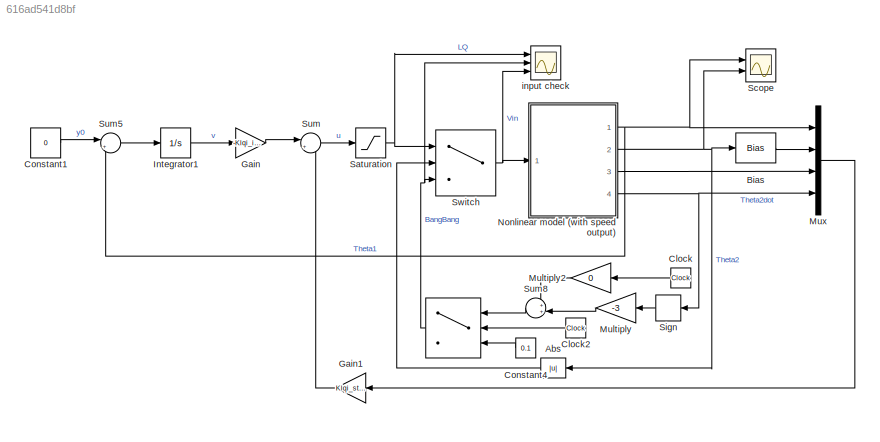
MODEL slx_616ad541d8bf
KIND model
CONFIG AbsTol = auto
CONFIG EnableMultiTasking = off
CONFIG FixedStep = 0.002
CONFIG MaxStep = auto
CONFIG MinStep = auto
CONFIG RelTol = 1e-3
CONFIG SampleTimeConstraint = Unconstrained
CONFIG Solver = FixedStepAuto
CONFIG SolverName = FixedStepAuto
CONFIG StartTime = 0.0
CONFIG StopTime = 25
BLOCK [Switch]  
  Criteria = u2 > Threshold
  InputSameDT = off
  SaturateOnIntegerOverflow = off
  Threshold = 0.2
BLOCK [Abs] Abs
  SaturateOnIntegerOverflow = off
BLOCK [Bias] Bias
  Bias = -pi
  SaturateOnIntegerOverflow = off
BLOCK [Clock] Clock
BLOCK [Clock] Clock2
BLOCK [Constant] Constant1
  Value = 0
BLOCK [Constant] Constant4
  Value = 0.1
BLOCK [Gain] Gain
  Gain = -Klqi_int
  OutDataTypeStr = Inherit: Inherit via internal rule
  ParamDataTypeStr = Inherit: Inherit via internal rule
  SaturateOnIntegerOverflow = off
BLOCK [Gain] Gain1
  Gain = Klqi_state
  Multiplication = Matrix(K*u)
  OutDataTypeStr = Inherit: Inherit via internal rule
  ParamDataTypeStr = Inherit: Inherit via internal rule
  SaturateOnIntegerOverflow = off
BLOCK [Integrator] Integrator1
  Ports = [1, 1]
BLOCK [Gain] Multiply
  Gain = -3
  OutDataTypeStr = Inherit: Inherit via internal rule
  ParamDataTypeStr = Inherit: Inherit via internal rule
  SaturateOnIntegerOverflow = off
BLOCK [Gain] Multiply2
  Gain = 0
  OutDataTypeStr = Inherit: Inherit via internal rule
  ParamDataTypeStr = Inherit: Inherit via internal rule
  SaturateOnIntegerOverflow = off
BLOCK [Mux] Mux
  DisplayOption = bar
  Ports = [4, 1]
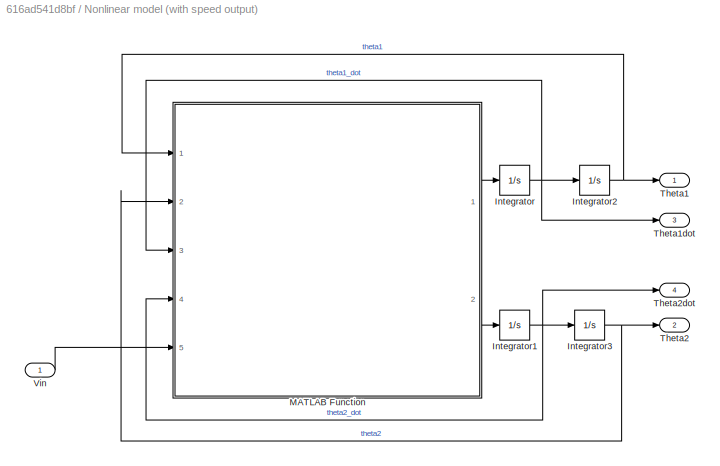
BLOCK [SubSystem] Nonlinear model (with speed output)
  Ports = [1, 4]
  RequestExecContextInheritance = off
BLOCK [Integrator] Nonlinear model (with speed output)/Integrator
  Ports = [1, 1]
BLOCK [Integrator] Nonlinear model (with speed output)/Integrator1
  Ports = [1, 1]
BLOCK [Integrator] Nonlinear model (with speed output)/Integrator2
  Ports = [1, 1]
BLOCK [Integrator] Nonlinear model (with speed output)/Integrator3
  Ports = [1, 1]
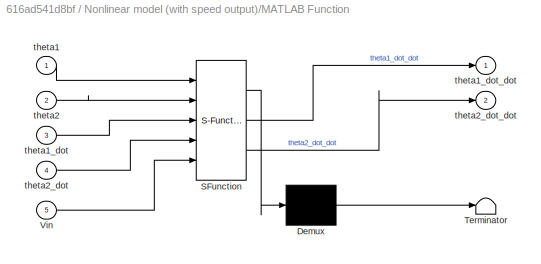
BLOCK [SubSystem] Nonlinear model (with speed output)/MATLAB Function
  ErrorFcn = Stateflow.Translate.translate
  PermitHierarchicalResolution = ExplicitOnly
  Ports = [5, 2]
  RequestExecContextInheritance = off
  SFBlockType = MATLAB Function
  TreatAsAtomicUnit = on
BLOCK [Demux] Nonlinear model (with speed output)/MATLAB Function/ Demux 
  DisplayOption = bar
  Outputs = 1
  Ports = [1, 1]
BLOCK [S-Function] Nonlinear model (with speed output)/MATLAB Function/ SFunction 
  EnableBusSupport = on
  FunctionName = sf_sfun
  Parameters = Pars
  PortCounts = [5 3]
  Ports = [5, 3]
  SFcnIsStateOwnerBlock = off
  SFunctionDeploymentMode = off
  Tag = Stateflow S-Function 4
BLOCK [Terminator] Nonlinear model (with speed output)/MATLAB Function/ Terminator 
BLOCK [Inport] Nonlinear model (with speed output)/MATLAB Function/Vin
  IconDisplay = Port number
  Port = 5
BLOCK [Inport] Nonlinear model (with speed output)/MATLAB Function/theta1
  IconDisplay = Port number
BLOCK [Inport] Nonlinear model (with speed output)/MATLAB Function/theta1_dot
  IconDisplay = Port number
  Port = 3
BLOCK [Outport] Nonlinear model (with speed output)/MATLAB Function/theta1_dot_dot
  IconDisplay = Port number
BLOCK [Inport] Nonlinear model (with speed output)/MATLAB Function/theta2
  IconDisplay = Port number
  Port = 2
BLOCK [Inport] Nonlinear model (with speed output)/MATLAB Function/theta2_dot
  IconDisplay = Port number
  Port = 4
BLOCK [Outport] Nonlinear model (with speed output)/MATLAB Function/theta2_dot_dot
  IconDisplay = Port number
  Port = 2
BLOCK [Outport] Nonlinear model (with speed output)/Theta1
  IconDisplay = Port number
BLOCK [Outport] Nonlinear model (with speed output)/Theta1dot
  IconDisplay = Port number
  Port = 3
BLOCK [Outport] Nonlinear model (with speed output)/Theta2
  IconDisplay = Port number
  Port = 2
BLOCK [Outport] Nonlinear model (with speed output)/Theta2dot
  IconDisplay = Port number
  Port = 4
BLOCK [Inport] Nonlinear model (with speed output)/Vin
  IconDisplay = Port number
BLOCK [Saturate] Saturation
  InputPortMap = u0
  LowerLimit = -10
  Ports = [1, 1]
  UpperLimit = 10
BLOCK [Scope] Scope
  Floating = off
  NumInputPorts = 2
  Ports = [2]
  ScopeSpecificationString = Simulink.scopes.TimeScopeBlockCfg('CurrentConfiguration', extmgr.ConfigurationSet(extmgr.Configuration('Core','General UI',true),extmgr.Configuration('Core','Source UI',true),extmgr.Configuration('Sources','WiredSimulink',true),extmgr.Configuration('Visuals','Time Domain',true,'SerializedDisplays',{struct('MinYLimReal','-3.25355','MaxYLimReal','3.2562','YLabelReal','','MinYLimMag','0.00000','MaxYL...<+1402ch>
BLOCK [Signum] Sign
BLOCK [Sum] Sum
  IconShape = round
  InputSameDT = off
  Inputs = |+-
  OutDataTypeStr = Inherit: Inherit via internal rule
  Ports = [2, 1]
  SaturateOnIntegerOverflow = off
BLOCK [Sum] Sum5
  IconShape = round
  InputSameDT = off
  Inputs = |+-
  OutDataTypeStr = Inherit: Inherit via internal rule
  Ports = [2, 1]
  SaturateOnIntegerOverflow = off
BLOCK [Sum] Sum8
  IconShape = round
  InputSameDT = off
  Inputs = ++|
  OutDataTypeStr = Inherit: Inherit via internal rule
  Ports = [2, 1]
  SaturateOnIntegerOverflow = off
BLOCK [Switch] Switch
  Criteria = u2 > Threshold
  InputSameDT = off
  SaturateOnIntegerOverflow = off
  Threshold = 16/18*pi
BLOCK [Scope] input check
  Floating = off
  NumInputPorts = 3
  Ports = [3]
  ScopeSpecificationString = Simulink.scopes.TimeScopeBlockCfg('CurrentConfiguration', extmgr.ConfigurationSet(extmgr.Configuration('Core','General UI',true),extmgr.Configuration('Core','Source UI',true),extmgr.Configuration('Sources','WiredSimulink',true,'DataLoggingVariableName','ScopeData1'),extmgr.Configuration('Visuals','Time Domain',true,'SerializedDisplays',{struct('MinYLimReal','-12.5','MaxYLimReal','12.5','YLabelReal...<+1525ch>
NET  :1 -> Switch:3, input check:2
LINE Abs:1 -> Switch:2
LINE Bias:1 -> Mux:2
LINE Clock2:1 ->  :2
LINE Clock:1 -> Multiply2:1
LINE Constant1:1 -> Sum5:1
LINE Constant4:1 ->  :3
LINE Gain1:1 -> Sum:2
LINE Gain:1 -> Sum:1
LINE Integrator1:1 -> Gain:1
LINE Multiply2:1 -> Sum8:1
LINE Multiply:1 -> Sum8:2
LINE Mux:1 -> Gain1:1
NET Nonlinear model (with speed output)/Integrator1:1 -> Nonlinear model (with speed output)/Integrator3:1, Nonlinear model (with speed output)/MATLAB Function:4, Nonlinear model (with speed output)/Theta2dot:1
NET Nonlinear model (with speed output)/Integrator2:1 -> Nonlinear model (with speed output)/MATLAB Function:1, Nonlinear model (with speed output)/Theta1:1
NET Nonlinear model (with speed output)/Integrator3:1 -> Nonlinear model (with speed output)/MATLAB Function:2, Nonlinear model (with speed output)/Theta2:1
NET Nonlinear model (with speed output)/Integrator:1 -> Nonlinear model (with speed output)/Integrator2:1, Nonlinear model (with speed output)/MATLAB Function:3, Nonlinear model (with speed output)/Theta1dot:1
LINE Nonlinear model (with speed output)/MATLAB Function:1 -> Nonlinear model (with speed output)/Integrator:1
LINE Nonlinear model (with speed output)/MATLAB Function:2 -> Nonlinear model (with speed output)/Integrator1:1
LINE Nonlinear model (with speed output)/Vin:1 -> Nonlinear model (with speed output)/MATLAB Function:5
NET Nonlinear model (with speed output):1 -> Mux:1, Scope:1, Sum5:2
NET Nonlinear model (with speed output):2 -> Abs:1, Bias:1, Scope:2
LINE Nonlinear model (with speed output):3 -> Mux:3
NET Nonlinear model (with speed output):4 -> Mux:4, Sign:1
NET Saturation:1 -> Switch:1, input check:1
LINE Sign:1 -> Multiply:1
LINE Sum5:1 -> Integrator1:1
LINE Sum8:1 ->  :1
LINE Sum:1 -> Saturation:1
NET Switch:1 -> Nonlinear model (with speed output):1, input check:3
note: NET lines group one-source signal fan-out (src -> all destinations, sorted); 1:1 wires keep LINE
CHART Nonlinear model
(with speed output)/MATLAB Function states=1 transitions=1
  STATE_LABEL 'eML_blk_kernel()'
  STATE_LABEL 'SCRIPT:\nfunction [theta1_dot_dot,theta2_dot_dot] = fcn(theta1, theta2, theta1_dot, theta2_dot,Vin, Pars)\n\n   k1 = Pars.Jeq + Pars.m2*(Pars.l1^2 + Pars.x2^2*sin(theta2)^2);\n   k2 = Pars.m2*Pars.l1*Pars.x2*cos(theta2);\n   k3 = 2*Pars.m2*Pars.x2^2*sin(theta2)*cos(theta2)*theta1_dot*theta2_dot - Pars.m2*Pars.l1*Pars.x2*sin(theta2)*theta2_dot^2 +Pars.Ks*theta1 - Pars.Km/Pars.Rm*Vin + (Pars.Km^2)/Pars.R...<+346ch>'
